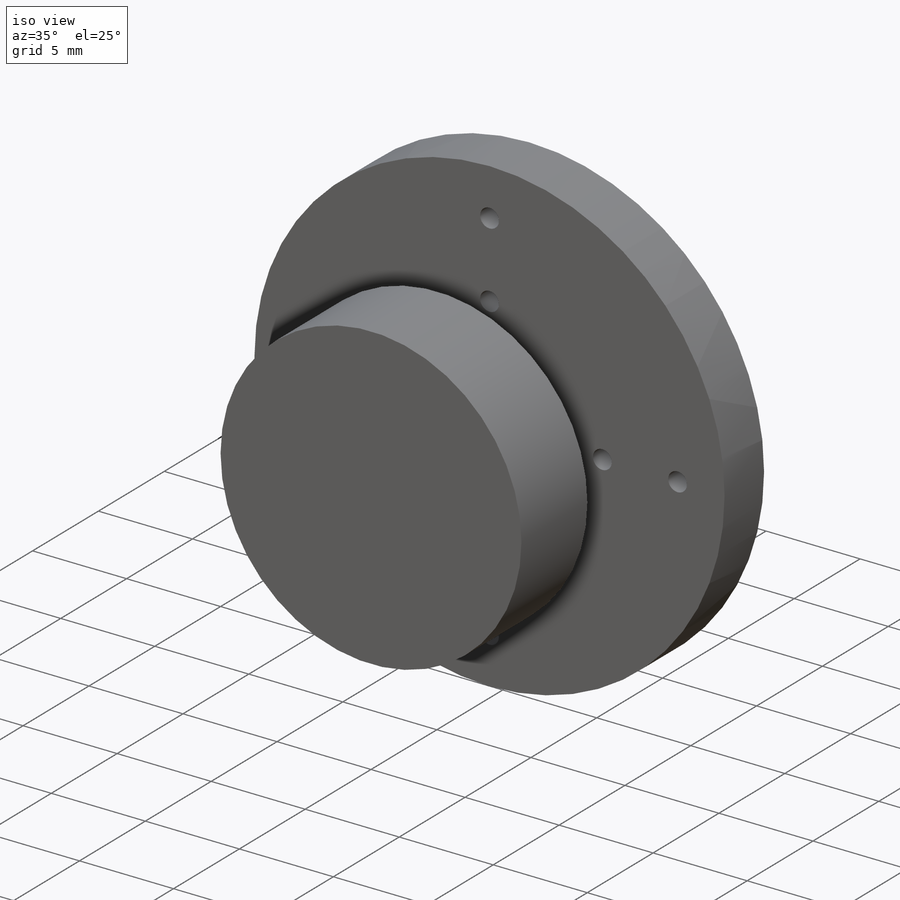
[diagram: iso view]
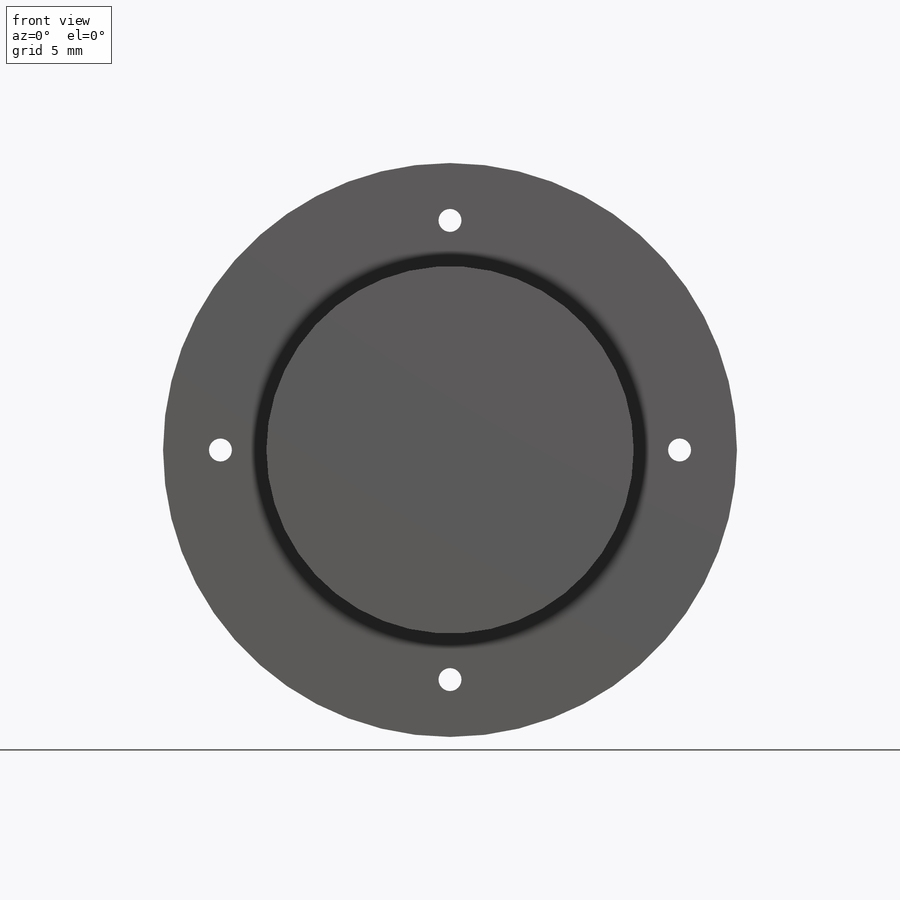
[diagram: front view]
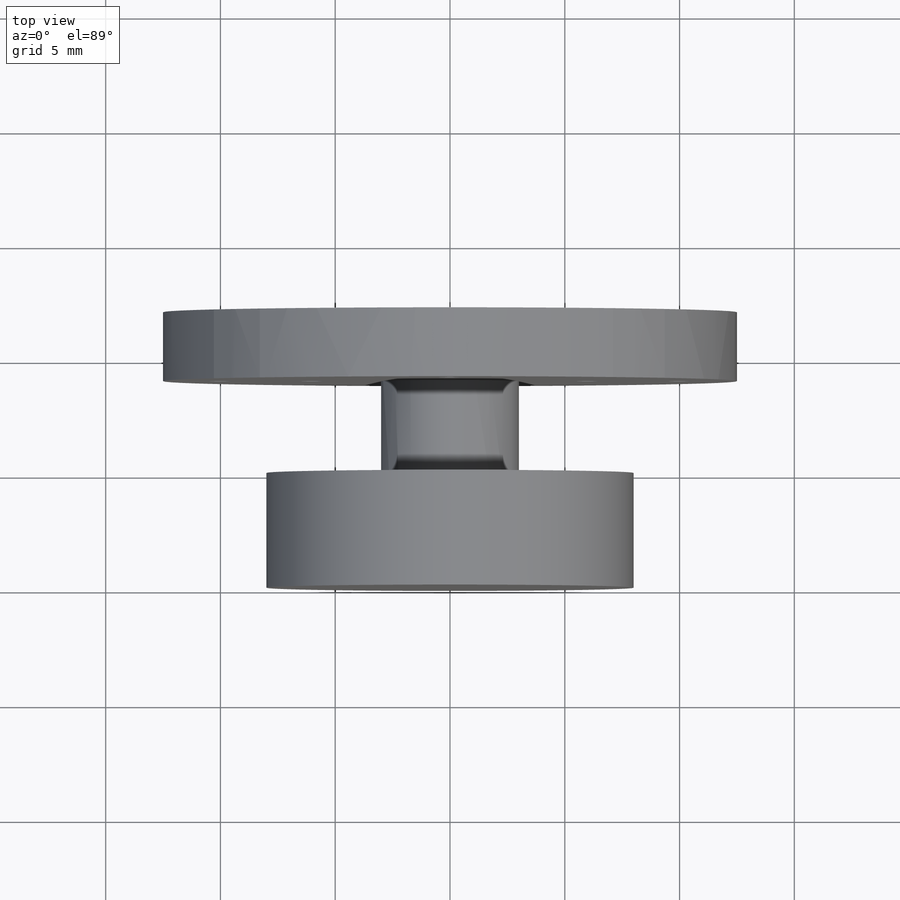
[diagram: top view]
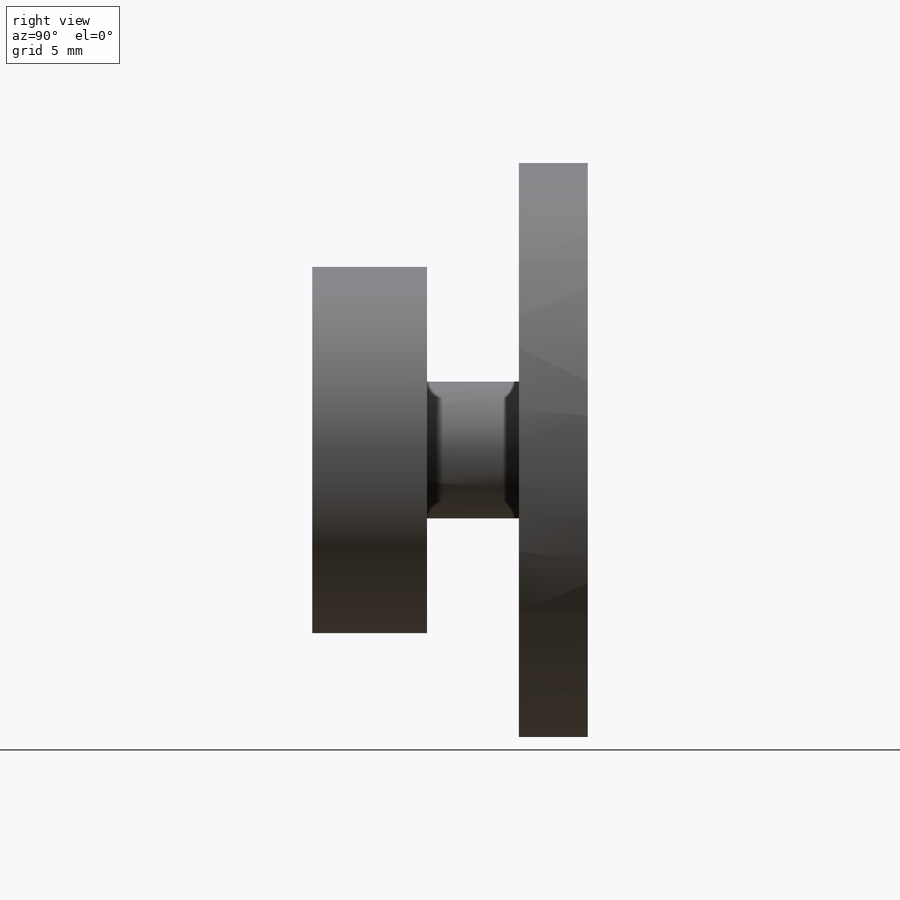
[diagram: right view]
SOLIDWORKS PART (.sldprt)
format: sldprt  version: not decoded by parser v0  size: 311,808 bytes
history: native  units: mm
features: sketch x4, extrude x3, material x1, cut_extrude x1, pattern_circular x1 (+15 scaffold rows collapsed)
feature tree (25):
  scaffold x15  (default folders/planes/origin — collapsed)
  material  "7079 Alloy"
  sketch  "Sketch1"  dims[D1=16.0mm]
  extrude  "Extrude1"  Depth=5mm
  sketch  "Sketch2"  dims[D1=6.0mm]
  extrude  "Extrude2"  Depth=4mm
  sketch  "Sketch3"  dims[D1=25.0mm]
  extrude  "Extrude3"  Depth=3mm
  sketch  "Sketch4"  dims[D2=1.0mm D4=1.0mm D1=6.0mm D3=4.0mm]
  cut_extrude  "Cut-Extrude1"  [1 undecoded]
  pattern_circular  "CirPattern1"  Count=4 Angle=360deg
decode coverage: 8 of 9 modeling features carry decoded parameters
note: 1 parameter value undecoded
note: suppression state not decoded; provenance and decode notes live in map.json
